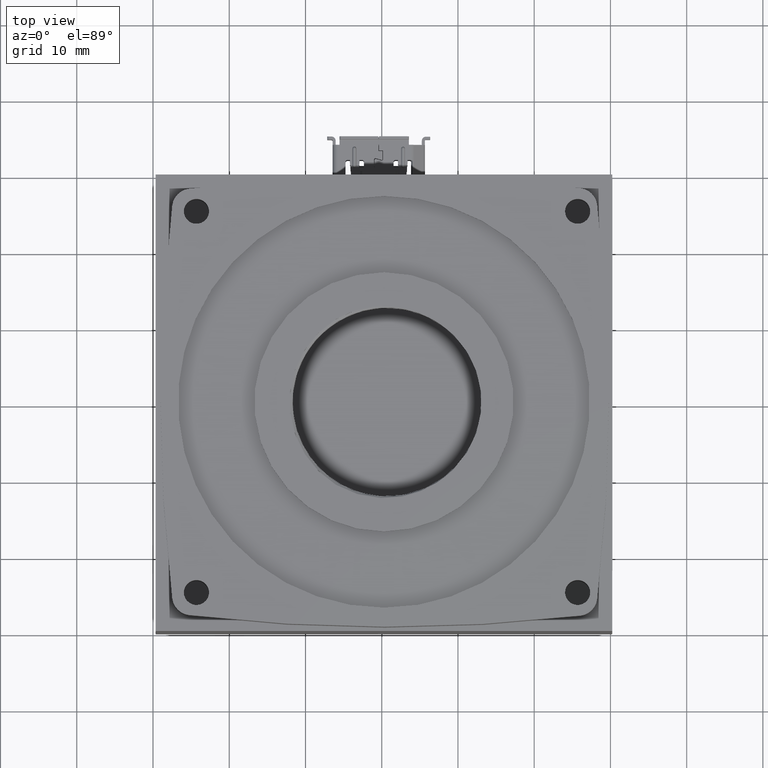
[diagram: clean part render]
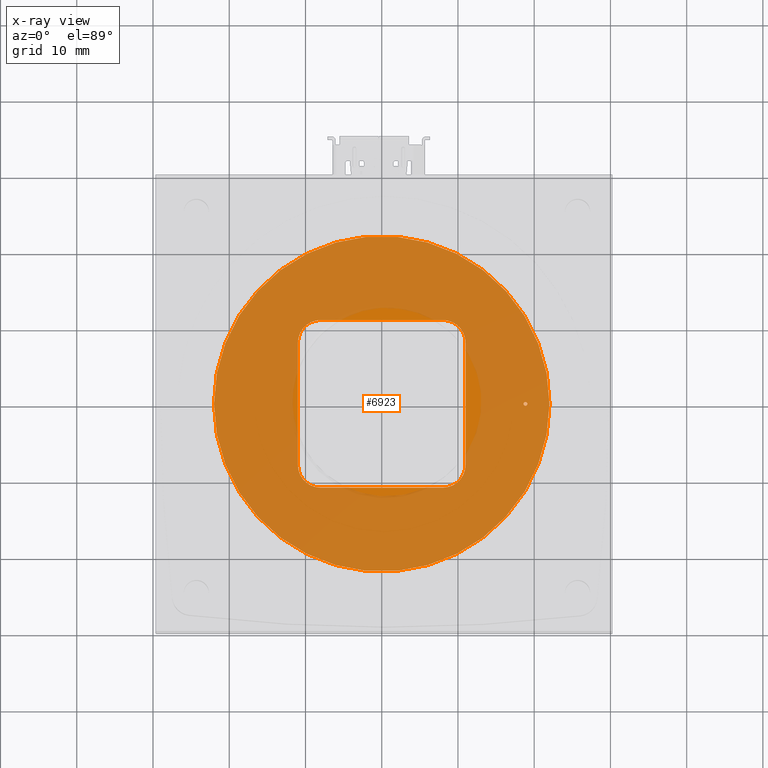
[diagram: x-ray — body ghosted, one internal face saturated and labeled with its STEP entity id]
A machine part, top view, then the same camera in x-ray: the body is ghosted and one INTERNAL B-rep face — a face not visible from any outside direction — is saturated and labeled: STEP entity #6923.
In plain terms, the highlighted planar face has unit normal (0, 0, -1).
Its self-contained STEP definition (entity closure, byte-faithful):
#3174=PLANE('',#55490);
#4196=FACE_BOUND('',#13296,.T.);
#4197=FACE_BOUND('',#13297,.T.);
#4198=FACE_BOUND('',#13298,.T.);
#6923=ADVANCED_FACE('',(#4196,#4197,#4198),#3174,.T.);
#13296=EDGE_LOOP('',(#38971));
#13297=EDGE_LOOP('',(#38972,#38973,#38974,#38975,#38976,#38977,#38978,#38979));
#13298=EDGE_LOOP('',(#38980));
#19176=LINE('',#84854,#25059);
#19177=LINE('',#84858,#25060);
#19178=LINE('',#84862,#25061);
#19179=LINE('',#84866,#25062);
#25059=VECTOR('',#68796,1.);
#25060=VECTOR('',#68799,1.);
#25061=VECTOR('',#68802,1.);
#25062=VECTOR('',#68805,1.);
#38971=ORIENTED_EDGE('',*,*,#50724,.F.);
#38972=ORIENTED_EDGE('',*,*,#50725,.F.);
#38973=ORIENTED_EDGE('',*,*,#50726,.F.);
#38974=ORIENTED_EDGE('',*,*,#50727,.F.);
#38975=ORIENTED_EDGE('',*,*,#50728,.F.);
#38976=ORIENTED_EDGE('',*,*,#50729,.F.);
#38977=ORIENTED_EDGE('',*,*,#50730,.F.);
#38978=ORIENTED_EDGE('',*,*,#50731,.F.);
#38979=ORIENTED_EDGE('',*,*,#50732,.F.);
#38980=ORIENTED_EDGE('',*,*,#50723,.T.);
#43780=VERTEX_POINT('',#84847);
#43781=VERTEX_POINT('',#84850);
#43782=VERTEX_POINT('',#84852);
#43783=VERTEX_POINT('',#84853);
#43784=VERTEX_POINT('',#84855);
#43785=VERTEX_POINT('',#84857);
#43786=VERTEX_POINT('',#84859);
#43787=VERTEX_POINT('',#84861);
#43788=VERTEX_POINT('',#84863);
#43789=VERTEX_POINT('',#84865);
#50723=EDGE_CURVE('',#43780,#43780,#51767,.T.);
#50724=EDGE_CURVE('',#43781,#43781,#51768,.T.);
#50725=EDGE_CURVE('',#43782,#43783,#51769,.T.);
#50726=EDGE_CURVE('',#43784,#43782,#19176,.T.);
#50727=EDGE_CURVE('',#43785,#43784,#51770,.T.);
#50728=EDGE_CURVE('',#43786,#43785,#19177,.T.);
#50729=EDGE_CURVE('',#43787,#43786,#51771,.T.);
#50730=EDGE_CURVE('',#43788,#43787,#19178,.T.);
#50731=EDGE_CURVE('',#43789,#43788,#51772,.T.);
#50732=EDGE_CURVE('',#43783,#43789,#19179,.T.);
#51767=CIRCLE('',#55483,22.);
#51768=CIRCLE('',#55485,0.25);
#51769=CIRCLE('',#55486,3.);
#51770=CIRCLE('',#55487,3.);
#51771=CIRCLE('',#55488,3.);
#51772=CIRCLE('',#55489,3.);
#55483=AXIS2_PLACEMENT_3D('',#84846,#68788,#68789);
#55485=AXIS2_PLACEMENT_3D('',#84849,#68792,#68793);
#55486=AXIS2_PLACEMENT_3D('',#84851,#68794,#68795);
#55487=AXIS2_PLACEMENT_3D('',#84856,#68797,#68798);
#55488=AXIS2_PLACEMENT_3D('',#84860,#68800,#68801);
#55489=AXIS2_PLACEMENT_3D('',#84864,#68803,#68804);
#55490=AXIS2_PLACEMENT_3D('',#84867,#68806,#68807);
#68788=DIRECTION('',(0.,0.,-1.));
#68789=DIRECTION('',(-1.,0.,0.));
#68792=DIRECTION('',(0.,0.,-1.));
#68793=DIRECTION('',(-1.,0.,0.));
#68794=DIRECTION('',(0.,0.,-1.));
#68795=DIRECTION('',(1.,0.,0.));
#68796=DIRECTION('',(1.,0.,0.));
#68797=DIRECTION('',(0.,0.,-1.));
#68798=DIRECTION('',(-1.,0.,0.));
#68799=DIRECTION('',(0.,1.,0.));
#68800=DIRECTION('',(0.,0.,-1.));
#68801=DIRECTION('',(-1.,0.,0.));
#68802=DIRECTION('',(-1.,0.,0.));
#68803=DIRECTION('',(0.,0.,-1.));
#68804=DIRECTION('',(1.,0.,0.));
#68805=DIRECTION('',(0.,-1.,0.));
#68806=DIRECTION('',(0.,0.,-1.));
#68807=DIRECTION('',(-1.,0.,0.));
#84846=CARTESIAN_POINT('',(0.,0.,1.9));
#84847=CARTESIAN_POINT('',(-22.,0.,1.9));
#84849=CARTESIAN_POINT('',(18.85,0.,1.9));
#84850=CARTESIAN_POINT('',(18.6,0.,1.9));
#84851=CARTESIAN_POINT('',(8.,8.,1.9));
#84852=CARTESIAN_POINT('',(7.99999999999998,11.,1.9));
#84853=CARTESIAN_POINT('',(11.,7.99999999999998,1.9));
#84854=CARTESIAN_POINT('',(-7.99999999999998,11.,1.9));
#84855=CARTESIAN_POINT('',(-7.99999999999998,11.,1.9));
#84856=CARTESIAN_POINT('',(-8.,8.,1.9));
#84857=CARTESIAN_POINT('',(-11.,7.99999999999998,1.9));
#84858=CARTESIAN_POINT('',(-11.,-7.99999999999998,1.9));
#84859=CARTESIAN_POINT('',(-11.,-7.99999999999998,1.9));
#84860=CARTESIAN_POINT('',(-8.,-8.,1.9));
#84861=CARTESIAN_POINT('',(-7.99999999999998,-11.,1.9));
#84862=CARTESIAN_POINT('',(7.99999999999998,-11.,1.9));
#84863=CARTESIAN_POINT('',(7.99999999999998,-11.,1.9));
#84864=CARTESIAN_POINT('',(8.,-8.,1.9));
#84865=CARTESIAN_POINT('',(11.,-7.99999999999998,1.9));
#84866=CARTESIAN_POINT('',(11.,7.99999999999998,1.9));
#84867=CARTESIAN_POINT('',(0.,0.,1.9));